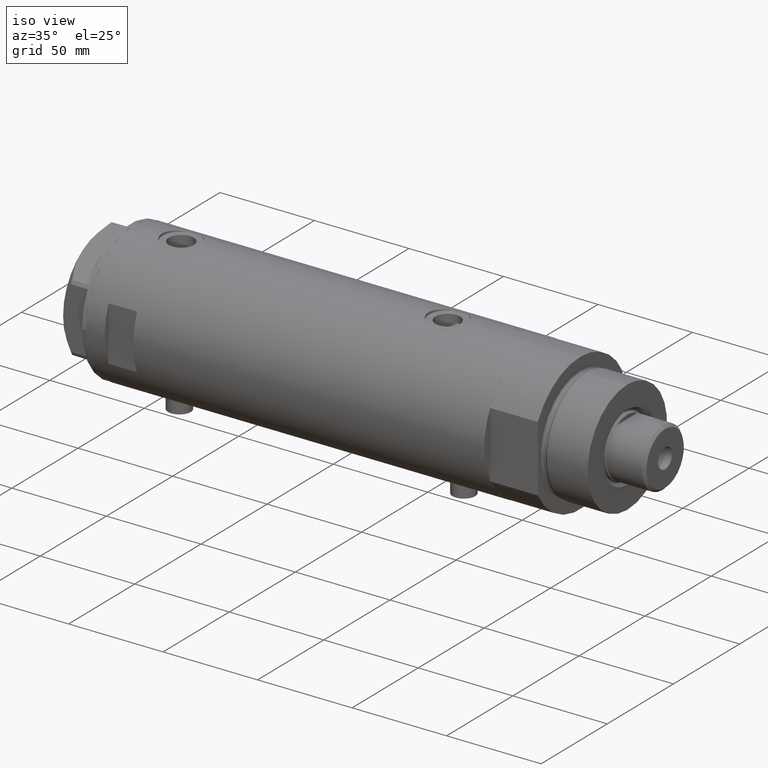
[diagram: clean part render]
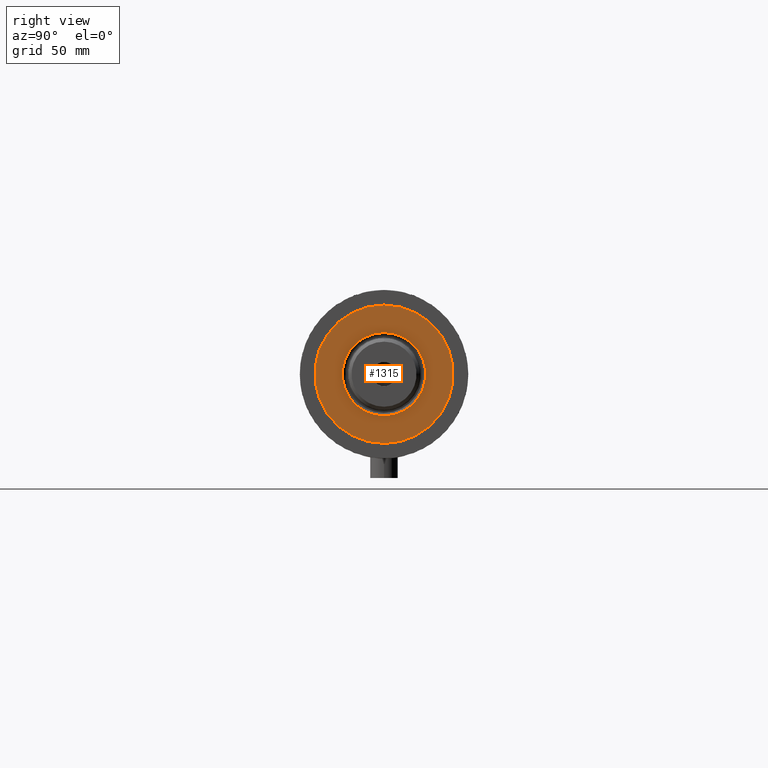
[diagram: tour spotlight — one face highlighted and labeled with its STEP entity id]
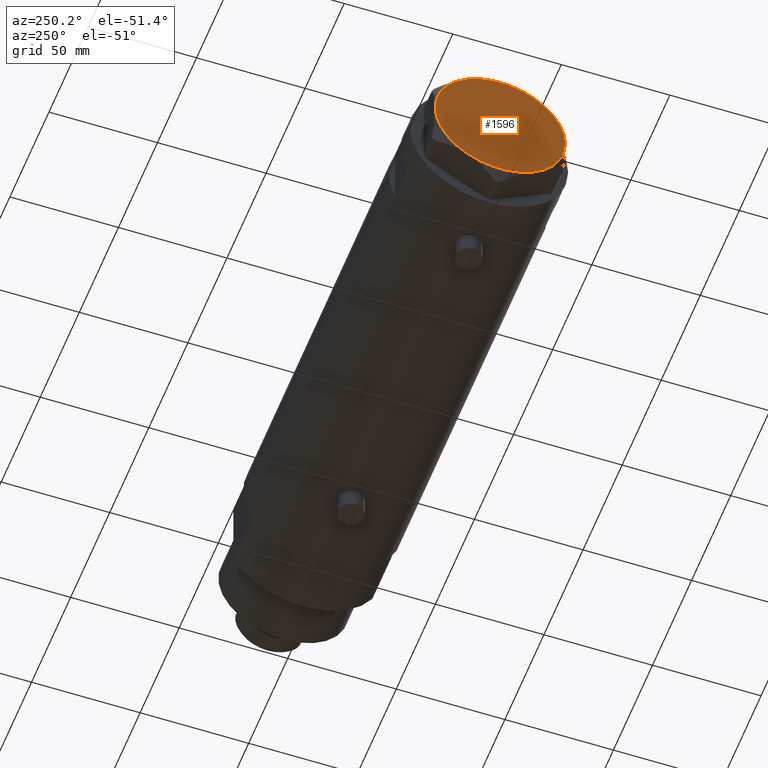
[diagram: tour spotlight — one face highlighted and labeled with its STEP entity id]
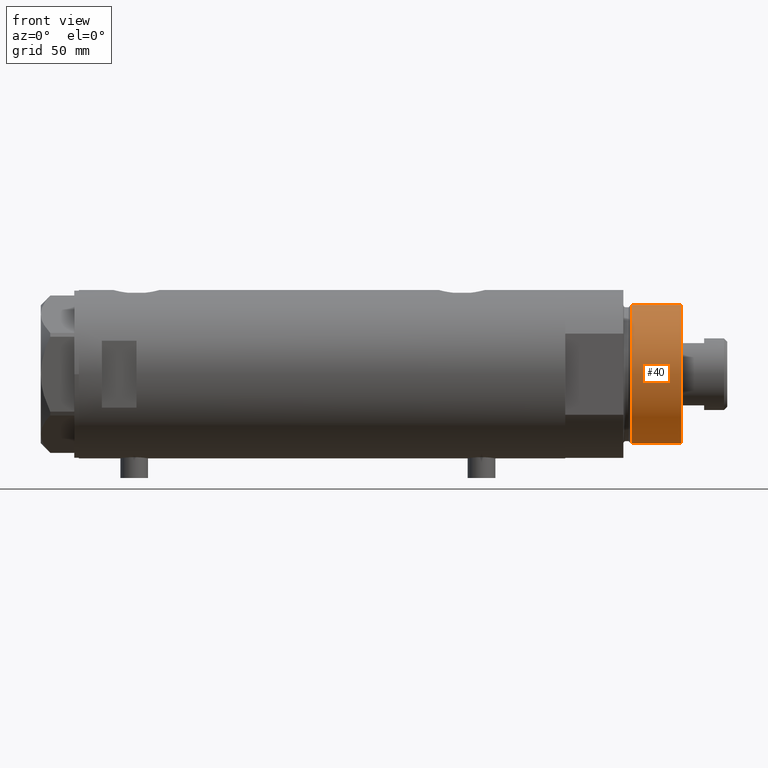
[diagram: tour spotlight — one face highlighted and labeled with its STEP entity id]
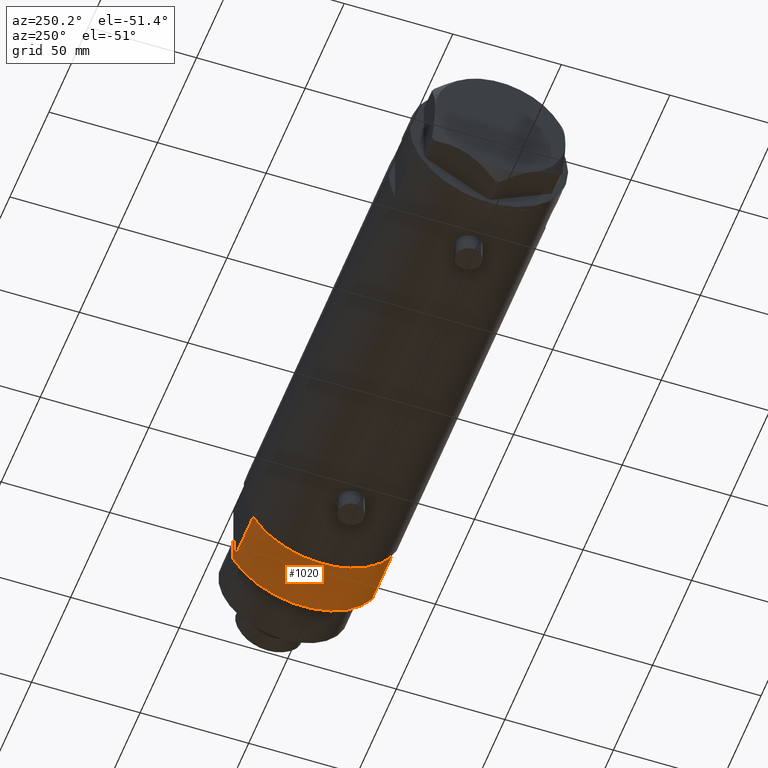
[diagram: tour spotlight — one face highlighted and labeled with its STEP entity id]
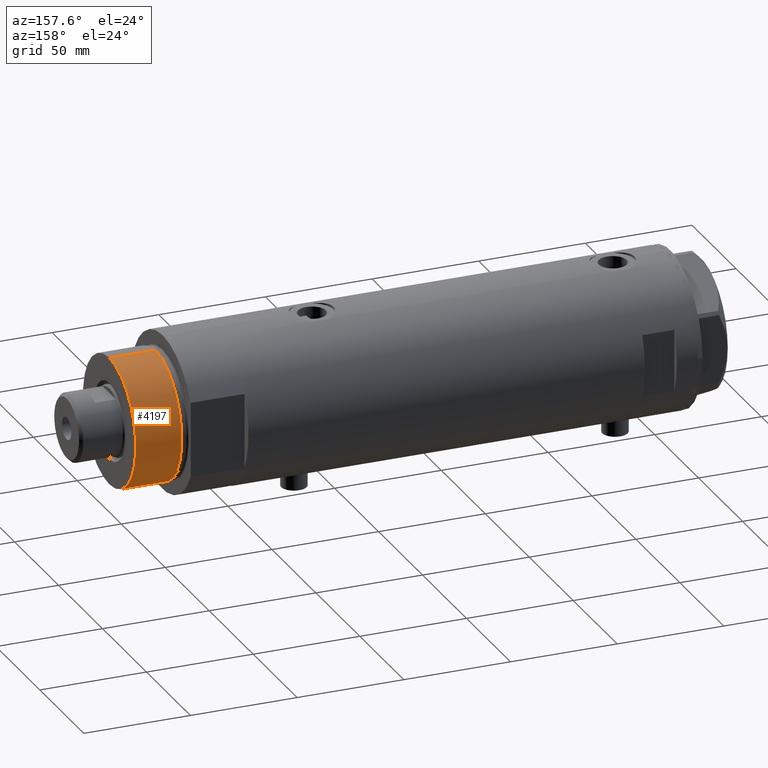
[diagram: tour spotlight — one face highlighted and labeled with its STEP entity id]
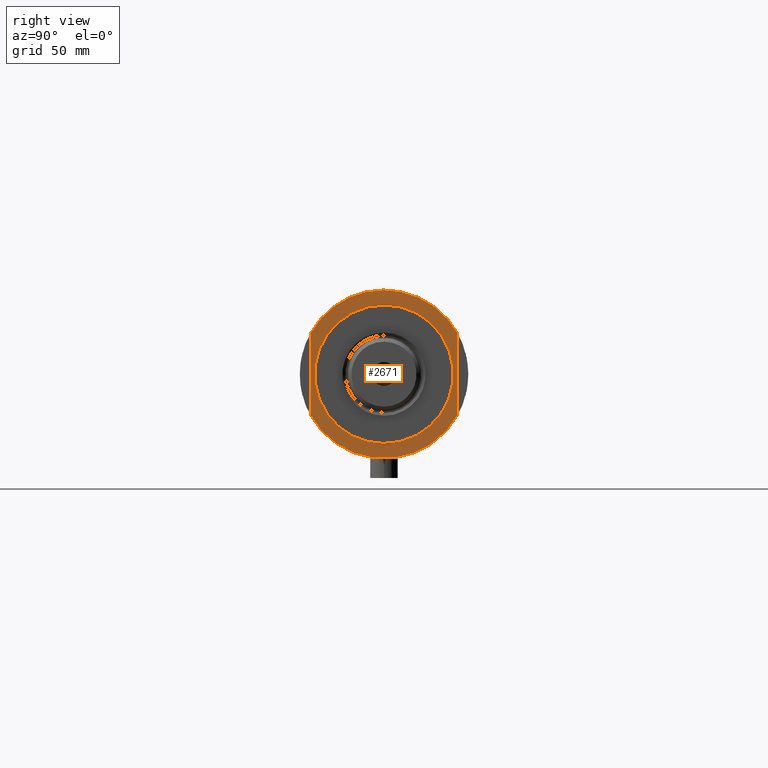
[diagram: tour spotlight — one face highlighted and labeled with its STEP entity id]
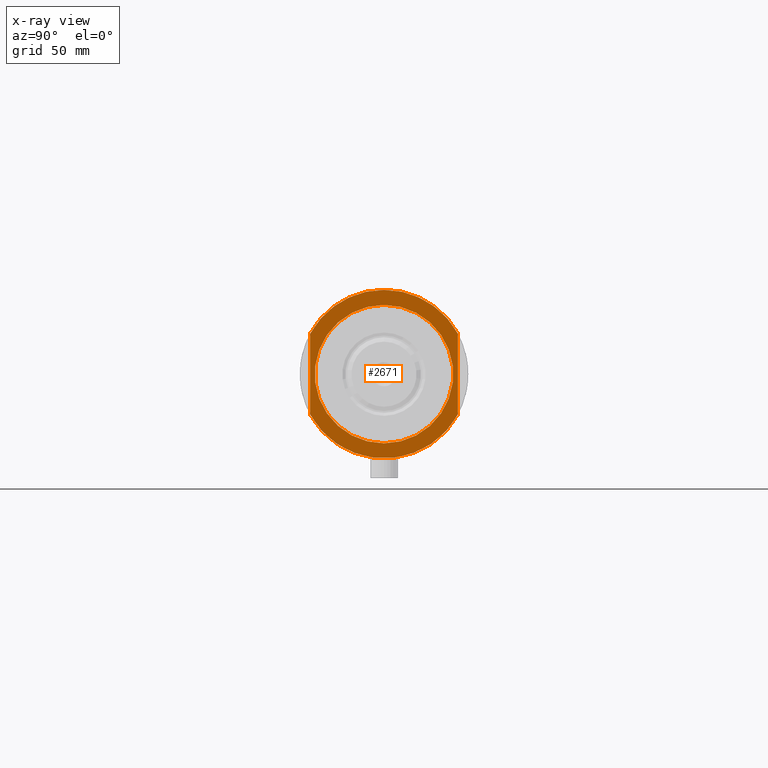
[diagram: x-ray of the same camera — body ghosted, this tour face saturated]
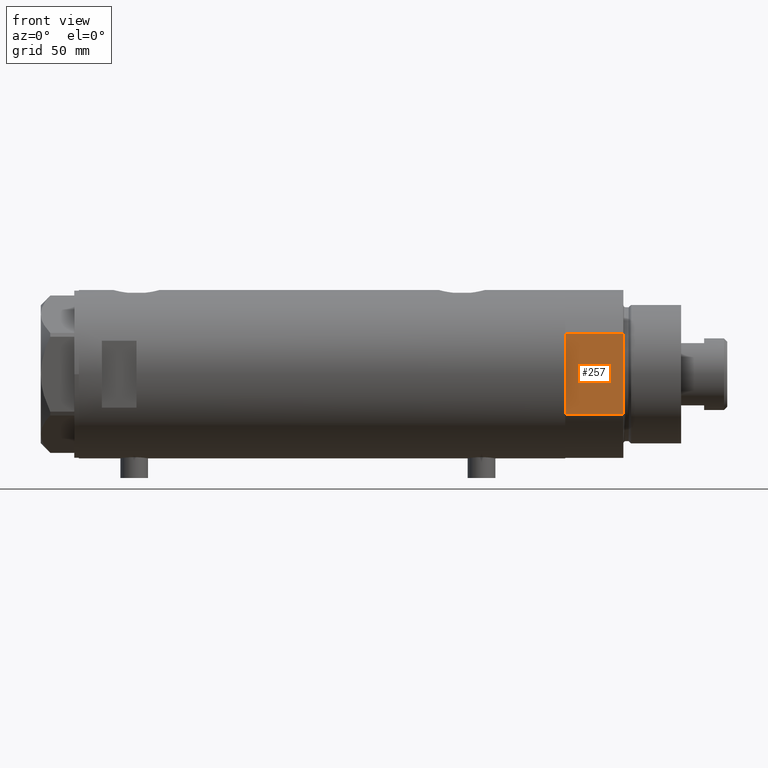
[diagram: tour spotlight — one face highlighted and labeled with its STEP entity id]
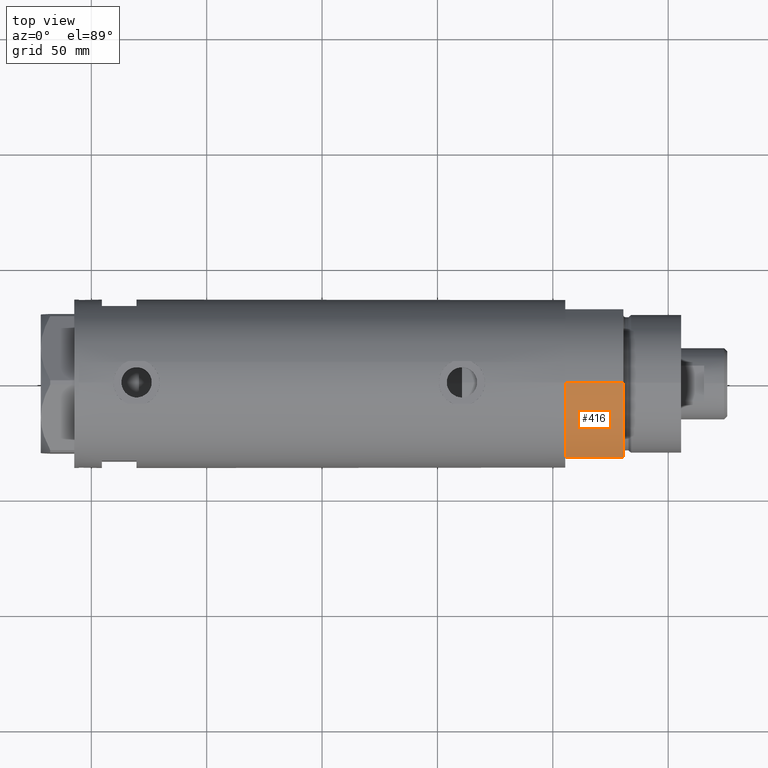
[diagram: tour spotlight — one face highlighted and labeled with its STEP entity id]
A machine part: a face-by-face anatomy tour. The part has 120 B-rep faces; the first image is the clean iso view, then the 8 largest visible faces are spotlighted one at a time (largest first), each with its STEP entity span.

Face 1 — right view, entity #1315. In plain terms, the highlighted planar face has unit normal (1, 0, -0).
Definition (entity closure, byte-faithful):
#112 = CARTESIAN_POINT ( 'NONE',  ( 0.000000000000000000, 0.000000000000000000, 50.19999999999999574 ) ) ;
#244 = EDGE_CURVE ( 'NONE', #1637, #2148, #2987, .T. ) ;
#268 = EDGE_LOOP ( 'NONE', ( #1055, #3594 ) ) ;
#312 = EDGE_LOOP ( 'NONE', ( #2464, #2734 ) ) ;
#441 = VERTEX_POINT ( 'NONE', #2562 ) ;
#996 = DIRECTION ( 'NONE',  ( 0.000000000000000000, 0.000000000000000000, 1.000000000000000000 ) ) ;
#1048 = CIRCLE ( 'NONE', #1337, 30.00000000000000000 ) ;
#1055 = ORIENTED_EDGE ( 'NONE', *, *, #1855, .T. ) ;
#1256 = VERTEX_POINT ( 'NONE', #2107 ) ;
#1299 = CIRCLE ( 'NONE', #2812, 18.04999999999996874 ) ;
#1315 = ADVANCED_FACE ( 'NONE', ( #2939, #1599 ), #1580, .T. ) ;
#1337 = AXIS2_PLACEMENT_3D ( 'NONE', #4292, #2616, #3973 ) ;
#1419 = EDGE_CURVE ( 'NONE', #441, #1256, #1299, .T. ) ;
#1580 = PLANE ( 'NONE',  #2844 ) ;
#1599 = FACE_OUTER_BOUND ( 'NONE', #268, .T. ) ;
#1610 = AXIS2_PLACEMENT_3D ( 'NONE', #112, #3871, #2815 ) ;
#1637 = VERTEX_POINT ( 'NONE', #2944 ) ;
#1855 = EDGE_CURVE ( 'NONE', #2148, #1637, #1048, .T. ) ;
#2107 = CARTESIAN_POINT ( 'NONE',  ( -18.04999999999996874, 2.210487472460968951E-15, 50.19999999999999574 ) ) ;
#2148 = VERTEX_POINT ( 'NONE', #3467 ) ;
#2234 = EDGE_CURVE ( 'NONE', #1256, #441, #3557, .T. ) ;
#2353 = DIRECTION ( 'NONE',  ( 1.000000000000000000, 0.000000000000000000, 0.000000000000000000 ) ) ;
#2464 = ORIENTED_EDGE ( 'NONE', *, *, #1419, .T. ) ;
#2561 = DIRECTION ( 'NONE',  ( -0.000000000000000000, -0.000000000000000000, -1.000000000000000000 ) ) ;
#2562 = CARTESIAN_POINT ( 'NONE',  ( 18.04999999999996874, 0.000000000000000000, 50.19999999999999574 ) ) ;
#2616 = DIRECTION ( 'NONE',  ( 0.000000000000000000, 0.000000000000000000, 1.000000000000000000 ) ) ;
#2631 = DIRECTION ( 'NONE',  ( 1.000000000000000000, 0.000000000000000000, 0.000000000000000000 ) ) ;
#2734 = ORIENTED_EDGE ( 'NONE', *, *, #2234, .T. ) ;
#2812 = AXIS2_PLACEMENT_3D ( 'NONE', #3917, #2561, #2631 ) ;
#2815 = DIRECTION ( 'NONE',  ( 1.000000000000000000, 0.000000000000000000, 0.000000000000000000 ) ) ;
#2844 = AXIS2_PLACEMENT_3D ( 'NONE', #3949, #3991, #3632 ) ;
#2939 = FACE_BOUND ( 'NONE', #312, .T. ) ;
#2944 = CARTESIAN_POINT ( 'NONE',  ( 30.00000000000000000, 3.673940397442058389E-15, 50.19999999999999574 ) ) ;
#2987 = CIRCLE ( 'NONE', #3578, 30.00000000000000000 ) ;
#3395 = CARTESIAN_POINT ( 'NONE',  ( 0.000000000000000000, 0.000000000000000000, 50.19999999999999574 ) ) ;
#3467 = CARTESIAN_POINT ( 'NONE',  ( -30.00000000000000000, 0.000000000000000000, 50.19999999999999574 ) ) ;
#3557 = CIRCLE ( 'NONE', #1610, 18.04999999999996874 ) ;
#3578 = AXIS2_PLACEMENT_3D ( 'NONE', #3395, #996, #2353 ) ;
#3594 = ORIENTED_EDGE ( 'NONE', *, *, #244, .T. ) ;
#3632 = DIRECTION ( 'NONE',  ( 1.000000000000000000, 0.000000000000000000, -0.000000000000000000 ) ) ;
#3871 = DIRECTION ( 'NONE',  ( -0.000000000000000000, -0.000000000000000000, -1.000000000000000000 ) ) ;
#3917 = CARTESIAN_POINT ( 'NONE',  ( 0.000000000000000000, 0.000000000000000000, 50.19999999999999574 ) ) ;
#3949 = CARTESIAN_POINT ( 'NONE',  ( 0.000000000000000000, 0.000000000000000000, 50.19999999999999574 ) ) ;
#3973 = DIRECTION ( 'NONE',  ( 1.000000000000000000, 0.000000000000000000, 0.000000000000000000 ) ) ;
#3991 = DIRECTION ( 'NONE',  ( 0.000000000000000000, 0.000000000000000000, 1.000000000000000000 ) ) ;
#4292 = CARTESIAN_POINT ( 'NONE',  ( 0.000000000000000000, 0.000000000000000000, 50.19999999999999574 ) ) ;

Face 2 — auxiliary view, entity #1596. In plain terms, the highlighted planar face has unit normal (-1, -0, 0).
Definition (entity closure, byte-faithful):
#18 = PLANE ( 'NONE',  #228 ) ;
#62 = DIRECTION ( 'NONE',  ( 1.000000000000000000, 0.000000000000000000, 0.000000000000000000 ) ) ;
#92 = CARTESIAN_POINT ( 'NONE',  ( 0.000000000000000000, 0.000000000000000000, 14.50000000000000000 ) ) ;
#143 = DIRECTION ( 'NONE',  ( 0.000000000000000000, 0.000000000000000000, 1.000000000000000000 ) ) ;
#228 = AXIS2_PLACEMENT_3D ( 'NONE', #1761, #2510, #4194 ) ;
#233 = ORIENTED_EDGE ( 'NONE', *, *, #2275, .T. ) ;
#234 = VERTEX_POINT ( 'NONE', #631 ) ;
#394 = FACE_OUTER_BOUND ( 'NONE', #3837, .T. ) ;
#411 = CIRCLE ( 'NONE', #1567, 30.00000000000000000 ) ;
#421 = DIRECTION ( 'NONE',  ( 1.000000000000000000, 0.000000000000000000, 0.000000000000000000 ) ) ;
#631 = CARTESIAN_POINT ( 'NONE',  ( 30.00000000000000000, 9.013887592422954582E-15, 14.50000000000000000 ) ) ;
#794 = ORIENTED_EDGE ( 'NONE', *, *, #2338, .T. ) ;
#816 = DIRECTION ( 'NONE',  ( 0.000000000000000000, 0.000000000000000000, 1.000000000000000000 ) ) ;
#866 = CARTESIAN_POINT ( 'NONE',  ( 14.99999999999999467, 25.98076211353316367, 14.50000000000000000 ) ) ;
#909 = CIRCLE ( 'NONE', #3421, 30.00000000000000000 ) ;
#1093 = ORIENTED_EDGE ( 'NONE', *, *, #3887, .T. ) ;
#1208 = EDGE_CURVE ( 'NONE', #2972, #2678, #411, .T. ) ;
#1490 = DIRECTION ( 'NONE',  ( 1.000000000000000000, 0.000000000000000000, 0.000000000000000000 ) ) ;
#1549 = DIRECTION ( 'NONE',  ( 1.000000000000000000, 0.000000000000000000, 0.000000000000000000 ) ) ;
#1567 = AXIS2_PLACEMENT_3D ( 'NONE', #1809, #816, #421 ) ;
#1596 = ADVANCED_FACE ( 'NONE', ( #394 ), #18, .T. ) ;
#1607 = AXIS2_PLACEMENT_3D ( 'NONE', #1891, #143, #3999 ) ;
#1739 = AXIS2_PLACEMENT_3D ( 'NONE', #2453, #3162, #62 ) ;
#1761 = CARTESIAN_POINT ( 'NONE',  ( 0.000000000000000000, 0.000000000000000000, 14.50000000000000000 ) ) ;
#1809 = CARTESIAN_POINT ( 'NONE',  ( 0.000000000000000000, 0.000000000000000000, 14.50000000000000000 ) ) ;
#1860 = EDGE_CURVE ( 'NONE', #3280, #2230, #3843, .T. ) ;
#1891 = CARTESIAN_POINT ( 'NONE',  ( 0.000000000000000000, 0.000000000000000000, 14.50000000000000000 ) ) ;
#1978 = AXIS2_PLACEMENT_3D ( 'NONE', #92, #3213, #1490 ) ;
#1987 = ORIENTED_EDGE ( 'NONE', *, *, #3308, .T. ) ;
#2230 = VERTEX_POINT ( 'NONE', #3185 ) ;
#2275 = EDGE_CURVE ( 'NONE', #2678, #3280, #4279, .T. ) ;
#2338 = EDGE_CURVE ( 'NONE', #2230, #234, #4213, .T. ) ;
#2453 = CARTESIAN_POINT ( 'NONE',  ( 0.000000000000000000, 0.000000000000000000, 14.50000000000000000 ) ) ;
#2510 = DIRECTION ( 'NONE',  ( 0.000000000000000000, 0.000000000000000000, 1.000000000000000000 ) ) ;
#2542 = VERTEX_POINT ( 'NONE', #866 ) ;
#2630 = CARTESIAN_POINT ( 'NONE',  ( -30.00000000000000000, 0.000000000000000000, 14.50000000000000000 ) ) ;
#2678 = VERTEX_POINT ( 'NONE', #2630 ) ;
#2680 = CARTESIAN_POINT ( 'NONE',  ( 0.000000000000000000, 0.000000000000000000, 14.50000000000000000 ) ) ;
#2887 = AXIS2_PLACEMENT_3D ( 'NONE', #4280, #3962, #1549 ) ;
#2972 = VERTEX_POINT ( 'NONE', #3171 ) ;
#3033 = DIRECTION ( 'NONE',  ( 1.000000000000000000, 0.000000000000000000, 0.000000000000000000 ) ) ;
#3162 = DIRECTION ( 'NONE',  ( 0.000000000000000000, 0.000000000000000000, 1.000000000000000000 ) ) ;
#3171 = CARTESIAN_POINT ( 'NONE',  ( -14.99999999999999645, 25.98076211353316367, 14.50000000000000000 ) ) ;
#3185 = CARTESIAN_POINT ( 'NONE',  ( 14.99999999999998757, -25.98076211353316722, 14.50000000000000000 ) ) ;
#3213 = DIRECTION ( 'NONE',  ( 0.000000000000000000, 0.000000000000000000, 1.000000000000000000 ) ) ;
#3280 = VERTEX_POINT ( 'NONE', #3384 ) ;
#3308 = EDGE_CURVE ( 'NONE', #2542, #2972, #909, .T. ) ;
#3384 = CARTESIAN_POINT ( 'NONE',  ( -14.99999999999999645, -25.98076211353316367, 14.50000000000000000 ) ) ;
#3421 = AXIS2_PLACEMENT_3D ( 'NONE', #2680, #3730, #3033 ) ;
#3694 = ORIENTED_EDGE ( 'NONE', *, *, #1208, .T. ) ;
#3730 = DIRECTION ( 'NONE',  ( 0.000000000000000000, 0.000000000000000000, 1.000000000000000000 ) ) ;
#3747 = ORIENTED_EDGE ( 'NONE', *, *, #1860, .T. ) ;
#3837 = EDGE_LOOP ( 'NONE', ( #794, #1093, #1987, #3694, #233, #3747 ) ) ;
#3843 = CIRCLE ( 'NONE', #1607, 30.00000000000000000 ) ;
#3887 = EDGE_CURVE ( 'NONE', #234, #2542, #4364, .T. ) ;
#3962 = DIRECTION ( 'NONE',  ( 0.000000000000000000, 0.000000000000000000, 1.000000000000000000 ) ) ;
#3999 = DIRECTION ( 'NONE',  ( 1.000000000000000000, 0.000000000000000000, 0.000000000000000000 ) ) ;
#4194 = DIRECTION ( 'NONE',  ( 1.000000000000000000, 0.000000000000000000, -0.000000000000000000 ) ) ;
#4213 = CIRCLE ( 'NONE', #2887, 30.00000000000000000 ) ;
#4279 = CIRCLE ( 'NONE', #1739, 30.00000000000000000 ) ;
#4280 = CARTESIAN_POINT ( 'NONE',  ( 0.000000000000000000, 0.000000000000000000, 14.50000000000000000 ) ) ;
#4364 = CIRCLE ( 'NONE', #1978, 30.00000000000000000 ) ;

Face 3 — front view, entity #40. In plain terms, the highlighted cylindrical surface (partial cylindrical patch) has radius 30 mm, axis along (-1, -0, 0).
Definition (entity closure, byte-faithful):
#40 = ADVANCED_FACE ( 'NONE', ( #3051 ), #660, .T. ) ;
#249 = ORIENTED_EDGE ( 'NONE', *, *, #1161, .F. ) ;
#370 = CARTESIAN_POINT ( 'NONE',  ( 0.000000000000000000, 0.000000000000000000, 50.19999999999999574 ) ) ;
#385 = AXIS2_PLACEMENT_3D ( 'NONE', #1230, #2936, #1877 ) ;
#660 = CYLINDRICAL_SURFACE ( 'NONE', #1762, 30.00000000000000000 ) ;
#1048 = CIRCLE ( 'NONE', #1337, 30.00000000000000000 ) ;
#1161 = EDGE_CURVE ( 'NONE', #1637, #2672, #1413, .T. ) ;
#1200 = EDGE_CURVE ( 'NONE', #2148, #3601, #1749, .T. ) ;
#1230 = CARTESIAN_POINT ( 'NONE',  ( 0.000000000000000000, 0.000000000000000000, 28.57384048104054486 ) ) ;
#1337 = AXIS2_PLACEMENT_3D ( 'NONE', #4292, #2616, #3973 ) ;
#1413 = LINE ( 'NONE', #3819, #2921 ) ;
#1462 = DIRECTION ( 'NONE',  ( -0.000000000000000000, -0.000000000000000000, -1.000000000000000000 ) ) ;
#1637 = VERTEX_POINT ( 'NONE', #2944 ) ;
#1734 = DIRECTION ( 'NONE',  ( -0.000000000000000000, -0.000000000000000000, -1.000000000000000000 ) ) ;
#1749 = LINE ( 'NONE', #3132, #3510 ) ;
#1762 = AXIS2_PLACEMENT_3D ( 'NONE', #370, #1734, #4438 ) ;
#1789 = CARTESIAN_POINT ( 'NONE',  ( 30.00000000000000000, 3.673940397442058389E-15, 28.57384048104054486 ) ) ;
#1855 = EDGE_CURVE ( 'NONE', #2148, #1637, #1048, .T. ) ;
#1877 = DIRECTION ( 'NONE',  ( 1.000000000000000000, 0.000000000000000000, 0.000000000000000000 ) ) ;
#2148 = VERTEX_POINT ( 'NONE', #3467 ) ;
#2334 = EDGE_CURVE ( 'NONE', #3601, #2672, #3184, .T. ) ;
#2389 = ORIENTED_EDGE ( 'NONE', *, *, #2334, .T. ) ;
#2616 = DIRECTION ( 'NONE',  ( 0.000000000000000000, 0.000000000000000000, 1.000000000000000000 ) ) ;
#2672 = VERTEX_POINT ( 'NONE', #1789 ) ;
#2846 = DIRECTION ( 'NONE',  ( -0.000000000000000000, -0.000000000000000000, -1.000000000000000000 ) ) ;
#2921 = VECTOR ( 'NONE', #1462, 1000.000000000000000 ) ;
#2936 = DIRECTION ( 'NONE',  ( -0.000000000000000000, -0.000000000000000000, 1.000000000000000000 ) ) ;
#2944 = CARTESIAN_POINT ( 'NONE',  ( 30.00000000000000000, 3.673940397442058389E-15, 50.19999999999999574 ) ) ;
#3040 = ORIENTED_EDGE ( 'NONE', *, *, #1200, .T. ) ;
#3051 = FACE_OUTER_BOUND ( 'NONE', #4195, .T. ) ;
#3132 = CARTESIAN_POINT ( 'NONE',  ( -30.00000000000000000, 0.000000000000000000, 50.19999999999999574 ) ) ;
#3184 = CIRCLE ( 'NONE', #385, 30.00000000000000000 ) ;
#3467 = CARTESIAN_POINT ( 'NONE',  ( -30.00000000000000000, 0.000000000000000000, 50.19999999999999574 ) ) ;
#3510 = VECTOR ( 'NONE', #2846, 1000.000000000000000 ) ;
#3601 = VERTEX_POINT ( 'NONE', #4065 ) ;
#3817 = ORIENTED_EDGE ( 'NONE', *, *, #1855, .F. ) ;
#3819 = CARTESIAN_POINT ( 'NONE',  ( 30.00000000000000000, 3.673940397442058389E-15, 50.19999999999999574 ) ) ;
#3973 = DIRECTION ( 'NONE',  ( 1.000000000000000000, 0.000000000000000000, 0.000000000000000000 ) ) ;
#4065 = CARTESIAN_POINT ( 'NONE',  ( -30.00000000000000000, 0.000000000000000000, 28.57384048104054486 ) ) ;
#4195 = EDGE_LOOP ( 'NONE', ( #249, #3817, #3040, #2389 ) ) ;
#4292 = CARTESIAN_POINT ( 'NONE',  ( 0.000000000000000000, 0.000000000000000000, 50.19999999999999574 ) ) ;
#4438 = DIRECTION ( 'NONE',  ( -1.000000000000000000, 0.000000000000000000, 0.000000000000000000 ) ) ;

Face 4 — auxiliary view, entity #1020. In plain terms, the highlighted cylindrical surface (partial cylindrical patch) has radius 36.5 mm, axis along (-1, -0, 0).
Definition (entity closure, byte-faithful):
#39 = ORIENTED_EDGE ( 'NONE', *, *, #2288, .T. ) ;
#84 = AXIS2_PLACEMENT_3D ( 'NONE', #185, #508, #1876 ) ;
#165 = VERTEX_POINT ( 'NONE', #1588 ) ;
#185 = CARTESIAN_POINT ( 'NONE',  ( 0.000000000000000000, 0.000000000000000000, 25.19999999999999929 ) ) ;
#277 = DIRECTION ( 'NONE',  ( -0.000000000000000000, -0.000000000000000000, -1.000000000000000000 ) ) ;
#508 = DIRECTION ( 'NONE',  ( 0.000000000000000000, 0.000000000000000000, 1.000000000000000000 ) ) ;
#715 = CARTESIAN_POINT ( 'NONE',  ( 17.55704986607943141, -32.00000000000000000, 0.000000000000000000 ) ) ;
#723 = DIRECTION ( 'NONE',  ( -0.000000000000000000, -0.000000000000000000, 1.000000000000000000 ) ) ;
#835 = EDGE_CURVE ( 'NONE', #165, #3687, #2421, .T. ) ;
#944 = CARTESIAN_POINT ( 'NONE',  ( 17.55704986607943496, 32.00000000000000000, 25.19999999999999929 ) ) ;
#1020 = ADVANCED_FACE ( 'NONE', ( #3370 ), #4094, .T. ) ;
#1033 = DIRECTION ( 'NONE',  ( -1.000000000000000000, 0.000000000000000000, 0.000000000000000000 ) ) ;
#1349 = CARTESIAN_POINT ( 'NONE',  ( 0.000000000000000000, 0.000000000000000000, 25.19999999999999929 ) ) ;
#1465 = CIRCLE ( 'NONE', #2177, 36.50000000000000000 ) ;
#1588 = CARTESIAN_POINT ( 'NONE',  ( 17.55704986607943496, 32.00000000000000000, 0.000000000000000000 ) ) ;
#1754 = CIRCLE ( 'NONE', #84, 36.50000000000000000 ) ;
#1767 = DIRECTION ( 'NONE',  ( 1.000000000000000000, 0.000000000000000000, 0.000000000000000000 ) ) ;
#1846 = ORIENTED_EDGE ( 'NONE', *, *, #835, .T. ) ;
#1876 = DIRECTION ( 'NONE',  ( 1.000000000000000000, 0.000000000000000000, 0.000000000000000000 ) ) ;
#2177 = AXIS2_PLACEMENT_3D ( 'NONE', #3587, #3892, #1767 ) ;
#2239 = ORIENTED_EDGE ( 'NONE', *, *, #3714, .F. ) ;
#2288 = EDGE_CURVE ( 'NONE', #4480, #165, #1465, .T. ) ;
#2421 = LINE ( 'NONE', #3806, #2715 ) ;
#2591 = VERTEX_POINT ( 'NONE', #3338 ) ;
#2660 = DIRECTION ( 'NONE',  ( -0.000000000000000000, -0.000000000000000000, 1.000000000000000000 ) ) ;
#2715 = VECTOR ( 'NONE', #723, 1000.000000000000000 ) ;
#3049 = ORIENTED_EDGE ( 'NONE', *, *, #3080, .F. ) ;
#3080 = EDGE_CURVE ( 'NONE', #2591, #3687, #1754, .T. ) ;
#3338 = CARTESIAN_POINT ( 'NONE',  ( 17.55704986607943496, -32.00000000000000000, 25.19999999999999929 ) ) ;
#3343 = EDGE_LOOP ( 'NONE', ( #3049, #2239, #39, #1846 ) ) ;
#3370 = FACE_OUTER_BOUND ( 'NONE', #3343, .T. ) ;
#3492 = VECTOR ( 'NONE', #2660, 1000.000000000000000 ) ;
#3587 = CARTESIAN_POINT ( 'NONE',  ( 0.000000000000000000, 0.000000000000000000, 0.000000000000000000 ) ) ;
#3687 = VERTEX_POINT ( 'NONE', #944 ) ;
#3714 = EDGE_CURVE ( 'NONE', #4480, #2591, #4132, .T. ) ;
#3806 = CARTESIAN_POINT ( 'NONE',  ( 17.55704986607943141, 32.00000000000000000, 0.000000000000000000 ) ) ;
#3868 = AXIS2_PLACEMENT_3D ( 'NONE', #1349, #277, #1033 ) ;
#3892 = DIRECTION ( 'NONE',  ( 0.000000000000000000, 0.000000000000000000, 1.000000000000000000 ) ) ;
#4094 = CYLINDRICAL_SURFACE ( 'NONE', #3868, 36.50000000000000000 ) ;
#4132 = LINE ( 'NONE', #715, #3492 ) ;
#4227 = CARTESIAN_POINT ( 'NONE',  ( 17.55704986607943141, -32.00000000000000000, 0.000000000000000000 ) ) ;
#4480 = VERTEX_POINT ( 'NONE', #4227 ) ;

Face 5 — auxiliary view, entity #4197. In plain terms, the highlighted cylindrical surface (partial cylindrical patch) has radius 30 mm, axis along (-1, -0, 0).
Definition (entity closure, byte-faithful):
#65 = DIRECTION ( 'NONE',  ( -1.000000000000000000, 0.000000000000000000, 0.000000000000000000 ) ) ;
#244 = EDGE_CURVE ( 'NONE', #1637, #2148, #2987, .T. ) ;
#338 = CARTESIAN_POINT ( 'NONE',  ( 0.000000000000000000, 0.000000000000000000, 28.57384048104054486 ) ) ;
#700 = CIRCLE ( 'NONE', #3189, 30.00000000000000000 ) ;
#780 = DIRECTION ( 'NONE',  ( -0.000000000000000000, -0.000000000000000000, -1.000000000000000000 ) ) ;
#996 = DIRECTION ( 'NONE',  ( 0.000000000000000000, 0.000000000000000000, 1.000000000000000000 ) ) ;
#1094 = CYLINDRICAL_SURFACE ( 'NONE', #3198, 30.00000000000000000 ) ;
#1161 = EDGE_CURVE ( 'NONE', #1637, #2672, #1413, .T. ) ;
#1200 = EDGE_CURVE ( 'NONE', #2148, #3601, #1749, .T. ) ;
#1413 = LINE ( 'NONE', #3819, #2921 ) ;
#1444 = FACE_OUTER_BOUND ( 'NONE', #3199, .T. ) ;
#1462 = DIRECTION ( 'NONE',  ( -0.000000000000000000, -0.000000000000000000, -1.000000000000000000 ) ) ;
#1637 = VERTEX_POINT ( 'NONE', #2944 ) ;
#1642 = DIRECTION ( 'NONE',  ( -0.000000000000000000, -0.000000000000000000, 1.000000000000000000 ) ) ;
#1749 = LINE ( 'NONE', #3132, #3510 ) ;
#1769 = CARTESIAN_POINT ( 'NONE',  ( 0.000000000000000000, 0.000000000000000000, 50.19999999999999574 ) ) ;
#1773 = ORIENTED_EDGE ( 'NONE', *, *, #1161, .T. ) ;
#1789 = CARTESIAN_POINT ( 'NONE',  ( 30.00000000000000000, 3.673940397442058389E-15, 28.57384048104054486 ) ) ;
#1822 = DIRECTION ( 'NONE',  ( 1.000000000000000000, 0.000000000000000000, 0.000000000000000000 ) ) ;
#2148 = VERTEX_POINT ( 'NONE', #3467 ) ;
#2353 = DIRECTION ( 'NONE',  ( 1.000000000000000000, 0.000000000000000000, 0.000000000000000000 ) ) ;
#2378 = ORIENTED_EDGE ( 'NONE', *, *, #3382, .T. ) ;
#2672 = VERTEX_POINT ( 'NONE', #1789 ) ;
#2846 = DIRECTION ( 'NONE',  ( -0.000000000000000000, -0.000000000000000000, -1.000000000000000000 ) ) ;
#2921 = VECTOR ( 'NONE', #1462, 1000.000000000000000 ) ;
#2944 = CARTESIAN_POINT ( 'NONE',  ( 30.00000000000000000, 3.673940397442058389E-15, 50.19999999999999574 ) ) ;
#2981 = ORIENTED_EDGE ( 'NONE', *, *, #244, .F. ) ;
#2987 = CIRCLE ( 'NONE', #3578, 30.00000000000000000 ) ;
#3132 = CARTESIAN_POINT ( 'NONE',  ( -30.00000000000000000, 0.000000000000000000, 50.19999999999999574 ) ) ;
#3189 = AXIS2_PLACEMENT_3D ( 'NONE', #338, #1642, #1822 ) ;
#3198 = AXIS2_PLACEMENT_3D ( 'NONE', #1769, #780, #65 ) ;
#3199 = EDGE_LOOP ( 'NONE', ( #2981, #1773, #2378, #3520 ) ) ;
#3382 = EDGE_CURVE ( 'NONE', #2672, #3601, #700, .T. ) ;
#3395 = CARTESIAN_POINT ( 'NONE',  ( 0.000000000000000000, 0.000000000000000000, 50.19999999999999574 ) ) ;
#3467 = CARTESIAN_POINT ( 'NONE',  ( -30.00000000000000000, 0.000000000000000000, 50.19999999999999574 ) ) ;
#3510 = VECTOR ( 'NONE', #2846, 1000.000000000000000 ) ;
#3520 = ORIENTED_EDGE ( 'NONE', *, *, #1200, .F. ) ;
#3578 = AXIS2_PLACEMENT_3D ( 'NONE', #3395, #996, #2353 ) ;
#3601 = VERTEX_POINT ( 'NONE', #4065 ) ;
#3819 = CARTESIAN_POINT ( 'NONE',  ( 30.00000000000000000, 3.673940397442058389E-15, 50.19999999999999574 ) ) ;
#4065 = CARTESIAN_POINT ( 'NONE',  ( -30.00000000000000000, 0.000000000000000000, 28.57384048104054486 ) ) ;
#4197 = ADVANCED_FACE ( 'NONE', ( #1444 ), #1094, .T. ) ;

Face 6 — right view, entity #2671. An x-ray twin of the same camera follows (body ghosted, this face saturated) — the face is partly hidden behind the body. In plain terms, the highlighted planar face has unit normal (1, 0, -0).
Definition (entity closure, byte-faithful):
#9 = DIRECTION ( 'NONE',  ( 0.000000000000000000, 0.000000000000000000, 1.000000000000000000 ) ) ;
#20 = CIRCLE ( 'NONE', #2699, 36.50000000000000000 ) ;
#84 = AXIS2_PLACEMENT_3D ( 'NONE', #185, #508, #1876 ) ;
#185 = CARTESIAN_POINT ( 'NONE',  ( 0.000000000000000000, 0.000000000000000000, 25.19999999999999929 ) ) ;
#221 = FACE_BOUND ( 'NONE', #492, .T. ) ;
#329 = ORIENTED_EDGE ( 'NONE', *, *, #810, .T. ) ;
#351 = CARTESIAN_POINT ( 'NONE',  ( 0.000000000000000000, 0.000000000000000000, 25.19999999999999929 ) ) ;
#409 = EDGE_CURVE ( 'NONE', #2591, #4226, #3523, .T. ) ;
#492 = EDGE_LOOP ( 'NONE', ( #3297, #329 ) ) ;
#508 = DIRECTION ( 'NONE',  ( 0.000000000000000000, 0.000000000000000000, 1.000000000000000000 ) ) ;
#607 = VERTEX_POINT ( 'NONE', #875 ) ;
#796 = CARTESIAN_POINT ( 'NONE',  ( -17.55704986607943496, -32.00000000000000000, 25.19999999999999929 ) ) ;
#805 = EDGE_CURVE ( 'NONE', #4302, #3687, #1059, .T. ) ;
#810 = EDGE_CURVE ( 'NONE', #607, #3551, #2355, .T. ) ;
#841 = CARTESIAN_POINT ( 'NONE',  ( 0.000000000000000000, 0.000000000000000000, 25.19999999999999929 ) ) ;
#854 = CIRCLE ( 'NONE', #930, 36.50000000000000000 ) ;
#875 = CARTESIAN_POINT ( 'NONE',  ( -30.00000000000000355, 3.673940397442059178E-15, 25.19999999999999929 ) ) ;
#930 = AXIS2_PLACEMENT_3D ( 'NONE', #3208, #2568, #3234 ) ;
#939 = DIRECTION ( 'NONE',  ( 1.000000000000000000, 0.000000000000000000, 0.000000000000000000 ) ) ;
#944 = CARTESIAN_POINT ( 'NONE',  ( 17.55704986607943496, 32.00000000000000000, 25.19999999999999929 ) ) ;
#953 = FACE_OUTER_BOUND ( 'NONE', #4411, .T. ) ;
#1016 = CARTESIAN_POINT ( 'NONE',  ( -17.55704986607943496, 32.00000000000000000, 25.19999999999999929 ) ) ;
#1059 = LINE ( 'NONE', #4430, #3144 ) ;
#1141 = CARTESIAN_POINT ( 'NONE',  ( 0.000000000000000000, 0.000000000000000000, 25.19999999999999929 ) ) ;
#1213 = DIRECTION ( 'NONE',  ( 1.000000000000000000, 0.000000000000000000, 0.000000000000000000 ) ) ;
#1321 = EDGE_CURVE ( 'NONE', #3551, #607, #4169, .T. ) ;
#1333 = EDGE_CURVE ( 'NONE', #4302, #2343, #854, .T. ) ;
#1397 = DIRECTION ( 'NONE',  ( 1.000000000000000000, 0.000000000000000000, 0.000000000000000000 ) ) ;
#1572 = ORIENTED_EDGE ( 'NONE', *, *, #1333, .T. ) ;
#1754 = CIRCLE ( 'NONE', #84, 36.50000000000000000 ) ;
#1864 = ORIENTED_EDGE ( 'NONE', *, *, #409, .F. ) ;
#1876 = DIRECTION ( 'NONE',  ( 1.000000000000000000, 0.000000000000000000, 0.000000000000000000 ) ) ;
#1936 = DIRECTION ( 'NONE',  ( -0.000000000000000000, -0.000000000000000000, -1.000000000000000000 ) ) ;
#2343 = VERTEX_POINT ( 'NONE', #2557 ) ;
#2355 = CIRCLE ( 'NONE', #3507, 30.00000000000000355 ) ;
#2379 = DIRECTION ( 'NONE',  ( -0.000000000000000000, -0.000000000000000000, -1.000000000000000000 ) ) ;
#2497 = CARTESIAN_POINT ( 'NONE',  ( -17.55704986607943141, -32.00000000000000000, 25.19999999999999929 ) ) ;
#2540 = DIRECTION ( 'NONE',  ( 0.000000000000000000, 0.000000000000000000, 1.000000000000000000 ) ) ;
#2557 = CARTESIAN_POINT ( 'NONE',  ( -36.50000000000000000, 0.000000000000000000, 25.19999999999999929 ) ) ;
#2568 = DIRECTION ( 'NONE',  ( 0.000000000000000000, 0.000000000000000000, 1.000000000000000000 ) ) ;
#2591 = VERTEX_POINT ( 'NONE', #3338 ) ;
#2671 = ADVANCED_FACE ( 'NONE', ( #221, #953 ), #3354, .T. ) ;
#2699 = AXIS2_PLACEMENT_3D ( 'NONE', #1141, #2540, #1213 ) ;
#2712 = CARTESIAN_POINT ( 'NONE',  ( 0.000000000000000000, 0.000000000000000000, 25.19999999999999929 ) ) ;
#2777 = AXIS2_PLACEMENT_3D ( 'NONE', #841, #1936, #939 ) ;
#3080 = EDGE_CURVE ( 'NONE', #2591, #3687, #1754, .T. ) ;
#3144 = VECTOR ( 'NONE', #1397, 1000.000000000000000 ) ;
#3168 = DIRECTION ( 'NONE',  ( -1.000000000000000000, -0.000000000000000000, -0.000000000000000000 ) ) ;
#3208 = CARTESIAN_POINT ( 'NONE',  ( 0.000000000000000000, 0.000000000000000000, 25.19999999999999929 ) ) ;
#3234 = DIRECTION ( 'NONE',  ( 1.000000000000000000, 0.000000000000000000, 0.000000000000000000 ) ) ;
#3297 = ORIENTED_EDGE ( 'NONE', *, *, #1321, .T. ) ;
#3338 = CARTESIAN_POINT ( 'NONE',  ( 17.55704986607943496, -32.00000000000000000, 25.19999999999999929 ) ) ;
#3354 = PLANE ( 'NONE',  #3919 ) ;
#3441 = ORIENTED_EDGE ( 'NONE', *, *, #3529, .T. ) ;
#3507 = AXIS2_PLACEMENT_3D ( 'NONE', #2712, #2379, #3761 ) ;
#3523 = LINE ( 'NONE', #2497, #3800 ) ;
#3529 = EDGE_CURVE ( 'NONE', #2343, #4226, #20, .T. ) ;
#3544 = CARTESIAN_POINT ( 'NONE',  ( 30.00000000000000355, 0.000000000000000000, 25.19999999999999929 ) ) ;
#3551 = VERTEX_POINT ( 'NONE', #3544 ) ;
#3687 = VERTEX_POINT ( 'NONE', #944 ) ;
#3761 = DIRECTION ( 'NONE',  ( 1.000000000000000000, 0.000000000000000000, 0.000000000000000000 ) ) ;
#3796 = ORIENTED_EDGE ( 'NONE', *, *, #3080, .T. ) ;
#3800 = VECTOR ( 'NONE', #3168, 1000.000000000000000 ) ;
#3903 = DIRECTION ( 'NONE',  ( 1.000000000000000000, 0.000000000000000000, -0.000000000000000000 ) ) ;
#3919 = AXIS2_PLACEMENT_3D ( 'NONE', #351, #9, #3903 ) ;
#4046 = ORIENTED_EDGE ( 'NONE', *, *, #805, .F. ) ;
#4169 = CIRCLE ( 'NONE', #2777, 30.00000000000000355 ) ;
#4226 = VERTEX_POINT ( 'NONE', #796 ) ;
#4302 = VERTEX_POINT ( 'NONE', #1016 ) ;
#4411 = EDGE_LOOP ( 'NONE', ( #1864, #3796, #4046, #1572, #3441 ) ) ;
#4430 = CARTESIAN_POINT ( 'NONE',  ( -17.55704986607943141, 32.00000000000000000, 25.19999999999999929 ) ) ;

Face 7 — front view, entity #257. In plain terms, the highlighted planar face has unit normal (-0, 1, 0).
Definition (entity closure, byte-faithful):
#194 = ORIENTED_EDGE ( 'NONE', *, *, #409, .T. ) ;
#257 = ADVANCED_FACE ( 'NONE', ( #303 ), #4123, .F. ) ;
#303 = FACE_OUTER_BOUND ( 'NONE', #3133, .T. ) ;
#409 = EDGE_CURVE ( 'NONE', #2591, #4226, #3523, .T. ) ;
#479 = VECTOR ( 'NONE', #3038, 1000.000000000000000 ) ;
#620 = CARTESIAN_POINT ( 'NONE',  ( -17.55704986607943496, -32.00000000000000000, 0.000000000000000000 ) ) ;
#715 = CARTESIAN_POINT ( 'NONE',  ( 17.55704986607943141, -32.00000000000000000, 0.000000000000000000 ) ) ;
#760 = VECTOR ( 'NONE', #3698, 1000.000000000000000 ) ;
#796 = CARTESIAN_POINT ( 'NONE',  ( -17.55704986607943496, -32.00000000000000000, 25.19999999999999929 ) ) ;
#1066 = EDGE_CURVE ( 'NONE', #3373, #4226, #1666, .T. ) ;
#1373 = CARTESIAN_POINT ( 'NONE',  ( -17.55704986607943141, -32.00000000000000000, 0.000000000000000000 ) ) ;
#1476 = EDGE_CURVE ( 'NONE', #4480, #2044, #4399, .T. ) ;
#1480 = AXIS2_PLACEMENT_3D ( 'NONE', #3762, #3042, #2051 ) ;
#1666 = LINE ( 'NONE', #1373, #479 ) ;
#2044 = VERTEX_POINT ( 'NONE', #3792 ) ;
#2051 = DIRECTION ( 'NONE',  ( 0.000000000000000000, -0.000000000000000000, 1.000000000000000000 ) ) ;
#2263 = ORIENTED_EDGE ( 'NONE', *, *, #3714, .T. ) ;
#2315 = CARTESIAN_POINT ( 'NONE',  ( -17.55704986607943141, -32.00000000000000000, 0.000000000000000000 ) ) ;
#2497 = CARTESIAN_POINT ( 'NONE',  ( -17.55704986607943141, -32.00000000000000000, 25.19999999999999929 ) ) ;
#2591 = VERTEX_POINT ( 'NONE', #3338 ) ;
#2658 = CARTESIAN_POINT ( 'NONE',  ( -17.55704986607943141, -32.00000000000000000, 0.000000000000000000 ) ) ;
#2660 = DIRECTION ( 'NONE',  ( -0.000000000000000000, -0.000000000000000000, 1.000000000000000000 ) ) ;
#2872 = ORIENTED_EDGE ( 'NONE', *, *, #1066, .F. ) ;
#3038 = DIRECTION ( 'NONE',  ( -0.000000000000000000, -0.000000000000000000, 1.000000000000000000 ) ) ;
#3042 = DIRECTION ( 'NONE',  ( -0.000000000000000000, 1.000000000000000000, 0.000000000000000000 ) ) ;
#3133 = EDGE_LOOP ( 'NONE', ( #194, #2872, #4471, #3215, #2263 ) ) ;
#3168 = DIRECTION ( 'NONE',  ( -1.000000000000000000, -0.000000000000000000, -0.000000000000000000 ) ) ;
#3215 = ORIENTED_EDGE ( 'NONE', *, *, #1476, .F. ) ;
#3334 = EDGE_CURVE ( 'NONE', #2044, #3373, #4445, .T. ) ;
#3338 = CARTESIAN_POINT ( 'NONE',  ( 17.55704986607943496, -32.00000000000000000, 25.19999999999999929 ) ) ;
#3373 = VERTEX_POINT ( 'NONE', #620 ) ;
#3492 = VECTOR ( 'NONE', #2660, 1000.000000000000000 ) ;
#3523 = LINE ( 'NONE', #2497, #3800 ) ;
#3698 = DIRECTION ( 'NONE',  ( -1.000000000000000000, -0.000000000000000000, -0.000000000000000000 ) ) ;
#3714 = EDGE_CURVE ( 'NONE', #4480, #2591, #4132, .T. ) ;
#3762 = CARTESIAN_POINT ( 'NONE',  ( -17.55704986607943141, -32.00000000000000000, 0.000000000000000000 ) ) ;
#3792 = CARTESIAN_POINT ( 'NONE',  ( 0.000000000000000000, -32.00000000000000000, 0.000000000000000000 ) ) ;
#3800 = VECTOR ( 'NONE', #3168, 1000.000000000000000 ) ;
#3923 = VECTOR ( 'NONE', #4036, 1000.000000000000000 ) ;
#4036 = DIRECTION ( 'NONE',  ( -1.000000000000000000, -0.000000000000000000, -0.000000000000000000 ) ) ;
#4123 = PLANE ( 'NONE',  #1480 ) ;
#4132 = LINE ( 'NONE', #715, #3492 ) ;
#4226 = VERTEX_POINT ( 'NONE', #796 ) ;
#4227 = CARTESIAN_POINT ( 'NONE',  ( 17.55704986607943141, -32.00000000000000000, 0.000000000000000000 ) ) ;
#4399 = LINE ( 'NONE', #2315, #760 ) ;
#4445 = LINE ( 'NONE', #2658, #3923 ) ;
#4471 = ORIENTED_EDGE ( 'NONE', *, *, #3334, .F. ) ;
#4480 = VERTEX_POINT ( 'NONE', #4227 ) ;

Face 8 — top view, entity #416. In plain terms, the highlighted cylindrical surface (partial cylindrical patch) has radius 36.5 mm, axis along (-1, -0, 0).
Definition (entity closure, byte-faithful):
#20 = CIRCLE ( 'NONE', #2699, 36.50000000000000000 ) ;
#187 = DIRECTION ( 'NONE',  ( 0.000000000000000000, 0.000000000000000000, 1.000000000000000000 ) ) ;
#317 = ORIENTED_EDGE ( 'NONE', *, *, #2988, .T. ) ;
#416 = ADVANCED_FACE ( 'NONE', ( #1886 ), #3567, .T. ) ;
#429 = LINE ( 'NONE', #767, #1973 ) ;
#479 = VECTOR ( 'NONE', #3038, 1000.000000000000000 ) ;
#509 = CARTESIAN_POINT ( 'NONE',  ( 0.000000000000000000, 0.000000000000000000, 0.000000000000000000 ) ) ;
#620 = CARTESIAN_POINT ( 'NONE',  ( -17.55704986607943496, -32.00000000000000000, 0.000000000000000000 ) ) ;
#669 = VERTEX_POINT ( 'NONE', #3689 ) ;
#767 = CARTESIAN_POINT ( 'NONE',  ( -36.50000000000000000, 0.000000000000000000, 25.19999999999999929 ) ) ;
#796 = CARTESIAN_POINT ( 'NONE',  ( -17.55704986607943496, -32.00000000000000000, 25.19999999999999929 ) ) ;
#1066 = EDGE_CURVE ( 'NONE', #3373, #4226, #1666, .T. ) ;
#1072 = AXIS2_PLACEMENT_3D ( 'NONE', #3880, #2136, #2539 ) ;
#1141 = CARTESIAN_POINT ( 'NONE',  ( 0.000000000000000000, 0.000000000000000000, 25.19999999999999929 ) ) ;
#1211 = EDGE_LOOP ( 'NONE', ( #1775, #317, #3545, #4255 ) ) ;
#1213 = DIRECTION ( 'NONE',  ( 1.000000000000000000, 0.000000000000000000, 0.000000000000000000 ) ) ;
#1373 = CARTESIAN_POINT ( 'NONE',  ( -17.55704986607943141, -32.00000000000000000, 0.000000000000000000 ) ) ;
#1575 = DIRECTION ( 'NONE',  ( 1.000000000000000000, 0.000000000000000000, 0.000000000000000000 ) ) ;
#1666 = LINE ( 'NONE', #1373, #479 ) ;
#1678 = CIRCLE ( 'NONE', #2100, 36.50000000000000000 ) ;
#1775 = ORIENTED_EDGE ( 'NONE', *, *, #3529, .F. ) ;
#1886 = FACE_OUTER_BOUND ( 'NONE', #1211, .T. ) ;
#1973 = VECTOR ( 'NONE', #2113, 1000.000000000000000 ) ;
#2100 = AXIS2_PLACEMENT_3D ( 'NONE', #509, #187, #1575 ) ;
#2113 = DIRECTION ( 'NONE',  ( -0.000000000000000000, -0.000000000000000000, -1.000000000000000000 ) ) ;
#2136 = DIRECTION ( 'NONE',  ( -0.000000000000000000, -0.000000000000000000, -1.000000000000000000 ) ) ;
#2310 = EDGE_CURVE ( 'NONE', #669, #3373, #1678, .T. ) ;
#2343 = VERTEX_POINT ( 'NONE', #2557 ) ;
#2539 = DIRECTION ( 'NONE',  ( -1.000000000000000000, 0.000000000000000000, 0.000000000000000000 ) ) ;
#2540 = DIRECTION ( 'NONE',  ( 0.000000000000000000, 0.000000000000000000, 1.000000000000000000 ) ) ;
#2557 = CARTESIAN_POINT ( 'NONE',  ( -36.50000000000000000, 0.000000000000000000, 25.19999999999999929 ) ) ;
#2699 = AXIS2_PLACEMENT_3D ( 'NONE', #1141, #2540, #1213 ) ;
#2988 = EDGE_CURVE ( 'NONE', #2343, #669, #429, .T. ) ;
#3038 = DIRECTION ( 'NONE',  ( -0.000000000000000000, -0.000000000000000000, 1.000000000000000000 ) ) ;
#3373 = VERTEX_POINT ( 'NONE', #620 ) ;
#3529 = EDGE_CURVE ( 'NONE', #2343, #4226, #20, .T. ) ;
#3545 = ORIENTED_EDGE ( 'NONE', *, *, #2310, .T. ) ;
#3567 = CYLINDRICAL_SURFACE ( 'NONE', #1072, 36.50000000000000000 ) ;
#3689 = CARTESIAN_POINT ( 'NONE',  ( -36.50000000000000000, 0.000000000000000000, 0.000000000000000000 ) ) ;
#3880 = CARTESIAN_POINT ( 'NONE',  ( 0.000000000000000000, 0.000000000000000000, 25.19999999999999929 ) ) ;
#4226 = VERTEX_POINT ( 'NONE', #796 ) ;
#4255 = ORIENTED_EDGE ( 'NONE', *, *, #1066, .T. ) ;